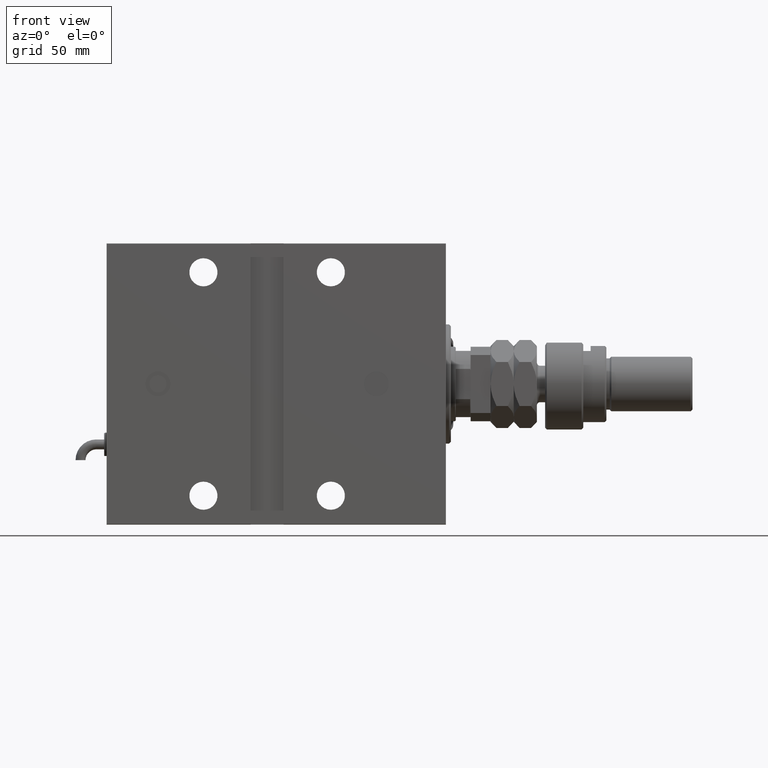
[diagram: clean part render]
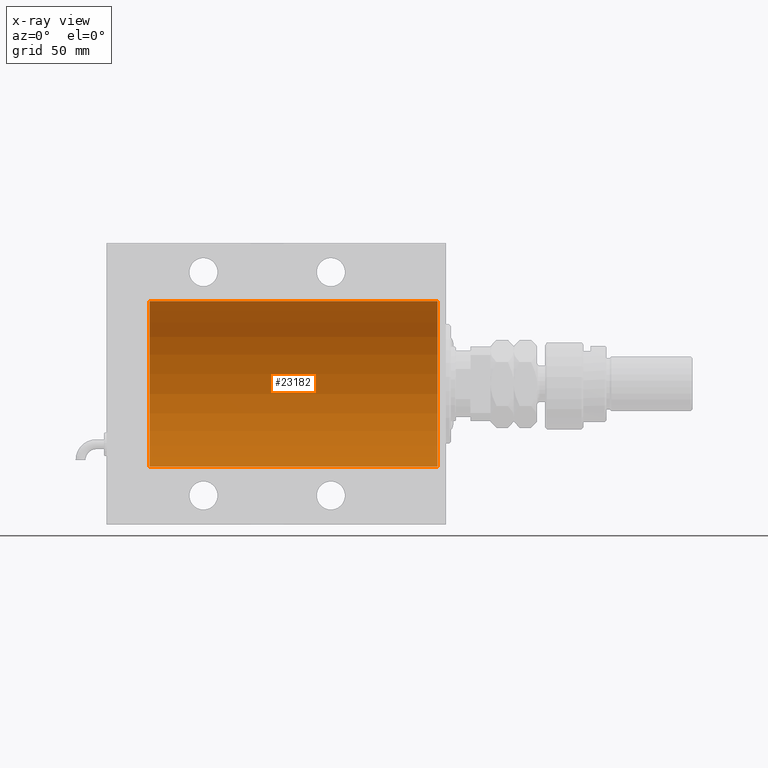
[diagram: x-ray — body ghosted, one internal face saturated and labeled with its STEP entity id]
A machine part, front view, then the same camera in x-ray: the body is ghosted and one INTERNAL B-rep face — a face not visible from any outside direction — is saturated and labeled: STEP entity #23182.
In plain terms, the highlighted cylindrical surface (partial cylindrical patch) has radius 50 mm, axis along (1, 0, -0).
Its self-contained STEP definition (entity closure, byte-faithful):
#2738 = CARTESIAN_POINT ( 'NONE',  ( 179.0000000000000000, 0.000000000000000000, 0.000000000000000000 ) ) ;
#4561 = DIRECTION ( 'NONE',  ( -1.000000000000000000, 0.000000000000000000, 0.000000000000000000 ) ) ;
#6801 = LINE ( 'NONE', #11793, #41326 ) ;
#6961 = AXIS2_PLACEMENT_3D ( 'NONE', #40298, #44654, #45271 ) ;
#7105 = CARTESIAN_POINT ( 'NONE',  ( 5.000000000000004441, 6.123233995736764507E-15, -50.00000000000000000 ) ) ;
#7398 = FACE_OUTER_BOUND ( 'NONE', #24092, .T. ) ;
#7657 = AXIS2_PLACEMENT_3D ( 'NONE', #2738, #26697, #45685 ) ;
#11487 = VECTOR ( 'NONE', #32540, 1000.000000000000000 ) ;
#11793 = CARTESIAN_POINT ( 'NONE',  ( 179.0000000000000000, 6.123233995736764507E-15, -50.00000000000000000 ) ) ;
#13048 = VERTEX_POINT ( 'NONE', #7105 ) ;
#13269 = EDGE_CURVE ( 'NONE', #59866, #25550, #42495, .T. ) ;
#19977 = ORIENTED_EDGE ( 'NONE', *, *, #59338, .T. ) ;
#23097 = AXIS2_PLACEMENT_3D ( 'NONE', #46893, #4561, #37557 ) ;
#23182 = ADVANCED_FACE ( 'NONE', ( #7398 ), #26387, .F. ) ;
#24092 = EDGE_LOOP ( 'NONE', ( #51856, #19977, #52936, #57194 ) ) ;
#24098 = CARTESIAN_POINT ( 'NONE',  ( 179.0000000000000000, 0.000000000000000000, 50.00000000000000000 ) ) ;
#25550 = VERTEX_POINT ( 'NONE', #33760 ) ;
#26387 = CYLINDRICAL_SURFACE ( 'NONE', #7657, 50.00000000000000000 ) ;
#26697 = DIRECTION ( 'NONE',  ( -1.000000000000000000, -0.000000000000000000, -0.000000000000000000 ) ) ;
#27081 = CIRCLE ( 'NONE', #23097, 50.00000000000000000 ) ;
#30750 = DIRECTION ( 'NONE',  ( -1.000000000000000000, -0.000000000000000000, -0.000000000000000000 ) ) ;
#30912 = CARTESIAN_POINT ( 'NONE',  ( 179.0000000000000000, 6.123233995736764507E-15, -50.00000000000000000 ) ) ;
#32540 = DIRECTION ( 'NONE',  ( -1.000000000000000000, -0.000000000000000000, -0.000000000000000000 ) ) ;
#33760 = CARTESIAN_POINT ( 'NONE',  ( 5.000000000000004441, 0.000000000000000000, 50.00000000000000000 ) ) ;
#34604 = EDGE_CURVE ( 'NONE', #13048, #25550, #35790, .T. ) ;
#35142 = VERTEX_POINT ( 'NONE', #30912 ) ;
#35790 = CIRCLE ( 'NONE', #6961, 50.00000000000000000 ) ;
#37557 = DIRECTION ( 'NONE',  ( 0.000000000000000000, 0.000000000000000000, 1.000000000000000000 ) ) ;
#40092 = EDGE_CURVE ( 'NONE', #35142, #59866, #27081, .T. ) ;
#40298 = CARTESIAN_POINT ( 'NONE',  ( 5.000000000000004441, 0.000000000000000000, 0.000000000000000000 ) ) ;
#41326 = VECTOR ( 'NONE', #30750, 1000.000000000000000 ) ;
#42495 = LINE ( 'NONE', #51836, #11487 ) ;
#44654 = DIRECTION ( 'NONE',  ( -1.000000000000000000, 0.000000000000000000, 0.000000000000000000 ) ) ;
#45271 = DIRECTION ( 'NONE',  ( 0.000000000000000000, 0.000000000000000000, 1.000000000000000000 ) ) ;
#45685 = DIRECTION ( 'NONE',  ( 0.000000000000000000, 0.000000000000000000, 1.000000000000000000 ) ) ;
#46893 = CARTESIAN_POINT ( 'NONE',  ( 179.0000000000000000, 0.000000000000000000, 0.000000000000000000 ) ) ;
#51836 = CARTESIAN_POINT ( 'NONE',  ( 179.0000000000000000, 0.000000000000000000, 50.00000000000000000 ) ) ;
#51856 = ORIENTED_EDGE ( 'NONE', *, *, #40092, .F. ) ;
#52936 = ORIENTED_EDGE ( 'NONE', *, *, #34604, .T. ) ;
#57194 = ORIENTED_EDGE ( 'NONE', *, *, #13269, .F. ) ;
#59338 = EDGE_CURVE ( 'NONE', #35142, #13048, #6801, .T. ) ;
#59866 = VERTEX_POINT ( 'NONE', #24098 ) ;